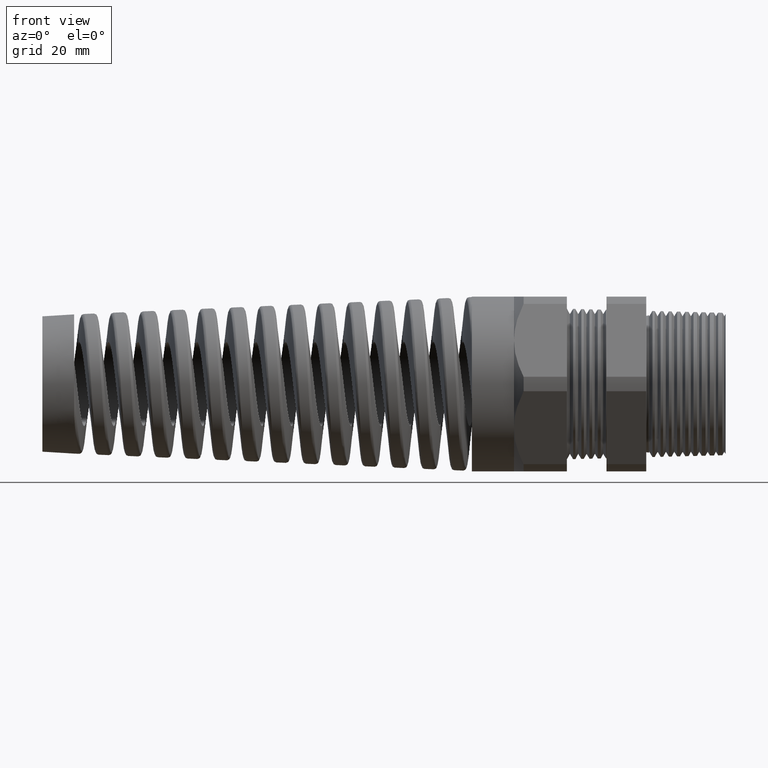
[diagram: clean part render]
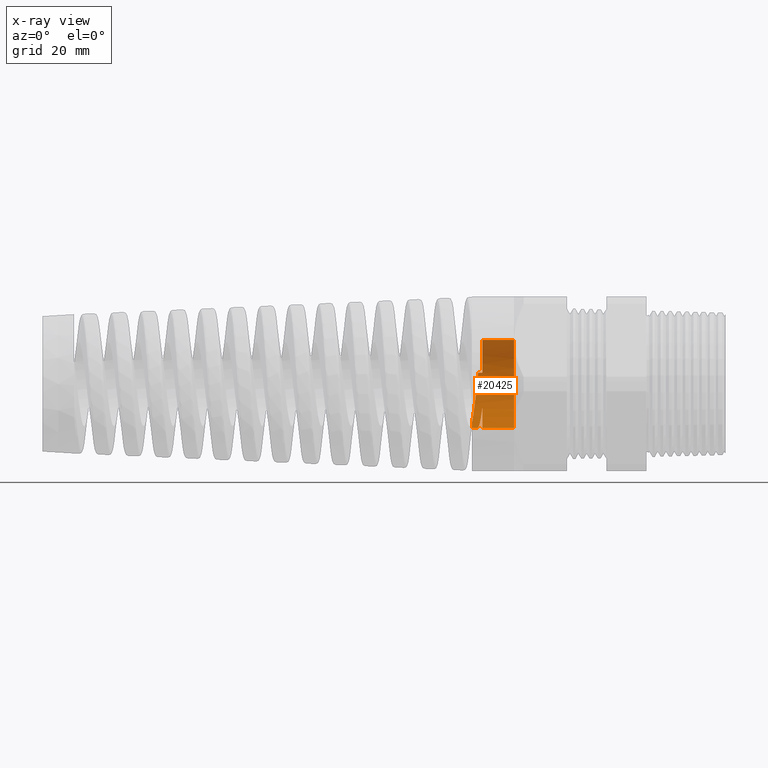
[diagram: x-ray — body ghosted, one internal face saturated and labeled with its STEP entity id]
A machine part, front view, then the same camera in x-ray: the body is ghosted and one INTERNAL B-rep face — a face not visible from any outside direction — is saturated and labeled: STEP entity #20425.
In plain terms, the highlighted cylindrical surface (partial cylindrical patch) has radius 8.321 mm, axis along (1, 0, 0).
Its self-contained STEP definition (entity closure, byte-faithful):
#5223 = CARTESIAN_POINT ( 'NONE',  ( -1.606986927084339500, 0.0000000000000000000, -0.3275967892592687200 ) ) ;
#5224 = DIRECTION ( 'NONE',  ( 1.000000000000000000, 0.0000000000000000000, 0.0000000000000000000 ) ) ;
#5225 = VECTOR ( 'NONE', #5224, 39.37007874015748100 ) ;
#5226 = CARTESIAN_POINT ( 'NONE',  ( -1.606986927084339500, 0.0000000000000000000, -0.3275967892592687200 ) ) ;
#5227 = LINE ( 'NONE', #5226, #5225 ) ;
#5232 = CARTESIAN_POINT ( 'NONE',  ( -1.564009951999491400, -2.522477456024838100E-014, -0.3275967892592686600 ) ) ;
#5263 = DIRECTION ( 'NONE',  ( 0.0000000000000000000, 0.0000000000000000000, 1.000000000000000000 ) ) ;
#5264 = DIRECTION ( 'NONE',  ( -1.000000000000000000, 0.0000000000000000000, 0.0000000000000000000 ) ) ;
#5265 = CARTESIAN_POINT ( 'NONE',  ( -1.606986927084339500, 0.1525758692573220800, -0.2898969824840443300 ) ) ;
#5266 = CARTESIAN_POINT ( 'NONE',  ( -1.605004228757576500, 0.1689550248547366500, -0.2812764584566374000 ) ) ;
#5267 = CARTESIAN_POINT ( 'NONE',  ( -1.603049201785262700, 0.1843852307230015600, -0.2713953827481360200 ) ) ;
#5268 = CARTESIAN_POINT ( 'NONE',  ( -1.599135240126633400, 0.2134158621749077100, -0.2492128344566598400 ) ) ;
#5269 = CARTESIAN_POINT ( 'NONE',  ( -1.597170242409938800, 0.2270567303460308600, -0.2368676581874454800 ) ) ;
#5270 = CARTESIAN_POINT ( 'NONE',  ( -1.593211744778435700, 0.2522511044948289600, -0.2098342835948729700 ) ) ;
#5271 = CARTESIAN_POINT ( 'NONE',  ( -1.591259486015284000, 0.2635452632033897200, -0.1954392749245925100 ) ) ;
#5272 = CARTESIAN_POINT ( 'NONE',  ( -1.587349972702919900, 0.2836196646291896900, -0.1649621222451397000 ) ) ;
#5273 = CARTESIAN_POINT ( 'NONE',  ( -1.585388383493998100, 0.2924168696719718900, -0.1488415606135928000 ) ) ;
#5274 = CARTESIAN_POINT ( 'NONE',  ( -1.579447548986019400, 0.3147507156515511600, -0.09807528402441957600 ) ) ;
#5275 = CARTESIAN_POINT ( 'NONE',  ( -1.575601669585525500, 0.3236741461375424200, -0.06263730614267096200 ) ) ;
#5276 = CARTESIAN_POINT ( 'NONE',  ( -1.567677821366614000, 0.3294914107645833300, 0.01112633052908935900 ) ) ;
#5277 = CARTESIAN_POINT ( 'NONE',  ( -1.563807957625775700, 0.3262449561249687300, 0.04747889690539582700 ) ) ;
#5278 = CARTESIAN_POINT ( 'NONE',  ( -1.559842567108416800, 0.3168342043425460000, 0.08328111005268572200 ) ) ;
#5279 = AXIS2_PLACEMENT_3D ( 'NONE', #5282, #5264, #5263 ) ;
#5280 = CIRCLE ( 'NONE', #5279, 0.3275967892592687200 ) ;
#5281 = B_SPLINE_CURVE_WITH_KNOTS ( 'NONE', 3,
 ( #5278, #5277, #5276, #5275, #5274, #5273, #5272, #5271, #5270, #5269, #5268, #5267, #5266, #5265 ),
 .UNSPECIFIED., .F., .F.,
 ( 4, 2, 2, 2, 2, 2, 4 ),
 ( 4.336808689942017700E-019, 0.002796671433905550500, 0.005593342867811100200, 0.006991678584763875600, 0.008390014301716649400, 0.009788350018669424900, 0.01118668573562220000 ),
 .UNSPECIFIED. ) ;
#5282 = CARTESIAN_POINT ( 'NONE',  ( -1.606986927084339500, 0.0000000000000000000, 0.0000000000000000000 ) ) ;
#5283 = CARTESIAN_POINT ( 'NONE',  ( -1.606986927084339500, 0.1525758692573220800, -0.2898969824840443300 ) ) ;
#5293 = DIRECTION ( 'NONE',  ( 0.0000000000000000000, 0.0000000000000000000, 1.000000000000000000 ) ) ;
#5294 = DIRECTION ( 'NONE',  ( 1.000000000000000000, 0.0000000000000000000, 0.0000000000000000000 ) ) ;
#5295 = AXIS2_PLACEMENT_3D ( 'NONE', #5301, #5294, #5293 ) ;
#5296 = CIRCLE ( 'NONE', #5295, 0.3275967892592687200 ) ;
#5301 = CARTESIAN_POINT ( 'NONE',  ( -1.293779527559055300, 0.0000000000000000000, 0.0000000000000000000 ) ) ;
#5438 = CARTESIAN_POINT ( 'NONE',  ( -1.530000000000000000, 0.0000000000000000000, -0.3275967892592687200 ) ) ;
#5444 = DIRECTION ( 'NONE',  ( 1.000000000000000000, 0.0000000000000000000, 0.0000000000000000000 ) ) ;
#5445 = VECTOR ( 'NONE', #5444, 39.37007874015748100 ) ;
#5446 = CARTESIAN_POINT ( 'NONE',  ( -1.606986927084339500, 4.011903593773134600E-017, 0.3275967892592687200 ) ) ;
#5447 = LINE ( 'NONE', #5446, #5445 ) ;
#5448 = CARTESIAN_POINT ( 'NONE',  ( -1.293779527559055300, 4.011903593773134600E-017, 0.3275967892592687200 ) ) ;
#5458 = CARTESIAN_POINT ( 'NONE',  ( -1.530000000000000000, 4.011903593773134600E-017, 0.3275967892592687200 ) ) ;
#5479 = CARTESIAN_POINT ( 'NONE',  ( -1.530000000000000000, 0.3168342043425460000, 0.08328111005268570800 ) ) ;
#5501 = DIRECTION ( 'NONE',  ( 0.0000000000000000000, 0.0000000000000000000, -1.000000000000000000 ) ) ;
#5502 = DIRECTION ( 'NONE',  ( -1.000000000000000000, 0.0000000000000000000, 0.0000000000000000000 ) ) ;
#5503 = CARTESIAN_POINT ( 'NONE',  ( -1.530000000000000000, 0.0000000000000000000, 0.0000000000000000000 ) ) ;
#5504 = AXIS2_PLACEMENT_3D ( 'NONE', #5503, #5502, #5501 ) ;
#5505 = CIRCLE ( 'NONE', #5504, 0.3275967892592687200 ) ;
#5510 = CARTESIAN_POINT ( 'NONE',  ( -1.559842567108416800, 0.3168342043425460000, 0.08328111005268572200 ) ) ;
#5516 = DIRECTION ( 'NONE',  ( 1.000000000000000000, 0.0000000000000000000, 0.0000000000000000000 ) ) ;
#5517 = VECTOR ( 'NONE', #5516, 39.37007874015748100 ) ;
#5518 = CARTESIAN_POINT ( 'NONE',  ( -1.606986927084339500, 0.3168342043425460000, 0.08328111005268570800 ) ) ;
#5524 = LINE ( 'NONE', #5518, #5517 ) ;
#6482 = DIRECTION ( 'NONE',  ( 1.000000000000000000, 0.0000000000000000000, 0.0000000000000000000 ) ) ;
#6483 = AXIS2_PLACEMENT_3D ( 'NONE', #6490, #6482, #6625 ) ;
#6484 = CYLINDRICAL_SURFACE ( 'NONE', #6483, 0.3275967892592687200 ) ;
#6490 = CARTESIAN_POINT ( 'NONE',  ( -1.606986927084339500, 0.0000000000000000000, 0.0000000000000000000 ) ) ;
#6492 = FACE_OUTER_BOUND ( 'NONE', #20328, .T. ) ;
#6590 = DIRECTION ( 'NONE',  ( 1.000000000000000000, 0.0000000000000000000, 0.0000000000000000000 ) ) ;
#6591 = VECTOR ( 'NONE', #6590, 39.37007874015748100 ) ;
#6592 = CARTESIAN_POINT ( 'NONE',  ( -1.606986927084339500, 0.0000000000000000000, -0.3275967892592687200 ) ) ;
#6606 = LINE ( 'NONE', #6592, #6591 ) ;
#6609 = CARTESIAN_POINT ( 'NONE',  ( -1.293779527559055300, 0.0000000000000000000, -0.3275967892592687200 ) ) ;
#6613 = CARTESIAN_POINT ( 'NONE',  ( -1.530000000000000200, 0.2708854878157694900, -0.1842300432171773100 ) ) ;
#6625 = DIRECTION ( 'NONE',  ( 0.0000000000000000000, 0.0000000000000000000, -1.000000000000000000 ) ) ;
#6651 = DIRECTION ( 'NONE',  ( 0.0000000000000000000, 0.0000000000000000000, -1.000000000000000000 ) ) ;
#6652 = DIRECTION ( 'NONE',  ( -1.000000000000000000, 0.0000000000000000000, 0.0000000000000000000 ) ) ;
#6654 = CARTESIAN_POINT ( 'NONE',  ( -1.530000000000000000, 0.0000000000000000000, 0.0000000000000000000 ) ) ;
#6655 = AXIS2_PLACEMENT_3D ( 'NONE', #6654, #6652, #6651 ) ;
#6657 = CIRCLE ( 'NONE', #6655, 0.3275967892592687200 ) ;
#17114 = CARTESIAN_POINT ( 'NONE',  ( -1.530000000000000200, 0.2708854878157694900, -0.1842300432171773100 ) ) ;
#17115 = CARTESIAN_POINT ( 'NONE',  ( -1.531410086634068300, 0.2634491727200121700, -0.1951641439050168800 ) ) ;
#17116 = CARTESIAN_POINT ( 'NONE',  ( -1.532820709330572800, 0.2553525623190978100, -0.2056507293560127500 ) ) ;
#17117 = CARTESIAN_POINT ( 'NONE',  ( -1.535662761244105200, 0.2378099785061000600, -0.2257068179974121300 ) ) ;
#17118 = CARTESIAN_POINT ( 'NONE',  ( -1.537096399322525700, 0.2283361318917980200, -0.2352842027458407800 ) ) ;
#17119 = CARTESIAN_POINT ( 'NONE',  ( -1.541344154380353200, 0.1986429983028501800, -0.2618514292161232500 ) ) ;
#17120 = CARTESIAN_POINT ( 'NONE',  ( -1.544145354140401800, 0.1769458301232221800, -0.2769924177356487000 ) ) ;
#17121 = CARTESIAN_POINT ( 'NONE',  ( -1.548422821282385600, 0.1415009501490036800, -0.2957632159801562600 ) ) ;
#17122 = CARTESIAN_POINT ( 'NONE',  ( -1.549848851664250800, 0.1292933884391238900, -0.3012947696706161400 ) ) ;
#17123 = CARTESIAN_POINT ( 'NONE',  ( -1.552674928881964600, 0.1045313684354499500, -0.3107547449966806500 ) ) ;
#17124 = CARTESIAN_POINT ( 'NONE',  ( -1.554082422364595900, 0.09191499081303086700, -0.3147167414568071700 ) ) ;
#17125 = CARTESIAN_POINT ( 'NONE',  ( -1.556907033668397400, 0.06621492314626836700, -0.3211083568549473200 ) ) ;
#17126 = CARTESIAN_POINT ( 'NONE',  ( -1.558326384258558600, 0.05310937390643163300, -0.3235408234081809700 ) ) ;
#17127 = CARTESIAN_POINT ( 'NONE',  ( -1.561184453596124800, 0.02650398463903866400, -0.3267978102843263100 ) ) ;
#17128 = CARTESIAN_POINT ( 'NONE',  ( -1.562598808948233700, 0.01323511598854614300, -0.3275967892592697200 ) ) ;
#17129 = CARTESIAN_POINT ( 'NONE',  ( -1.564009951999491400, -2.522477456024838100E-014, -0.3275967892592686600 ) ) ;
#17134 = B_SPLINE_CURVE_WITH_KNOTS ( 'NONE', 3,
 ( #17129, #17128, #17127, #17126, #17125, #17124, #17123, #17122, #17121, #17120, #17119, #17118, #17117, #17116, #17115, #17114 ),
 .UNSPECIFIED., .F., .F.,
 ( 4, 2, 2, 2, 2, 2, 2, 4 ),
 ( 0.01024741821517863800, 0.01126073674905674200, 0.01227405528293484800, 0.01328737381681295200, 0.01430069235069105600, 0.01632732941844726100, 0.01734064795232536500, 0.01835396648620346600 ),
 .UNSPECIFIED. ) ;
#18823 = ORIENTED_EDGE ( 'NONE', *, *, #19156, .T. ) ;
#18824 = ORIENTED_EDGE ( 'NONE', *, *, #19087, .T. ) ;
#18827 = VERTEX_POINT ( 'NONE', #5232 ) ;
#18858 = ORIENTED_EDGE ( 'NONE', *, *, #20520, .T. ) ;
#18864 = EDGE_CURVE ( 'NONE', #18865, #18827, #5227, .T. ) ;
#18865 = VERTEX_POINT ( 'NONE', #5223 ) ;
#18867 = ORIENTED_EDGE ( 'NONE', *, *, #18871, .T. ) ;
#18871 = EDGE_CURVE ( 'NONE', #20345, #18873, #5281, .T. ) ;
#18873 = VERTEX_POINT ( 'NONE', #5283 ) ;
#18874 = ORIENTED_EDGE ( 'NONE', *, *, #18864, .T. ) ;
#18875 = EDGE_CURVE ( 'NONE', #18873, #18865, #5280, .T. ) ;
#18876 = ORIENTED_EDGE ( 'NONE', *, *, #18875, .T. ) ;
#19087 = EDGE_CURVE ( 'NONE', #20511, #20305, #5296, .T. ) ;
#19156 = EDGE_CURVE ( 'NONE', #18827, #20474, #17134, .T. ) ;
#20301 = VERTEX_POINT ( 'NONE', #5458 ) ;
#20305 = VERTEX_POINT ( 'NONE', #5448 ) ;
#20306 = EDGE_CURVE ( 'NONE', #20301, #20305, #5447, .T. ) ;
#20310 = VERTEX_POINT ( 'NONE', #5438 ) ;
#20314 = ORIENTED_EDGE ( 'NONE', *, *, #20343, .F. ) ;
#20327 = VERTEX_POINT ( 'NONE', #5479 ) ;
#20328 = EDGE_LOOP ( 'NONE', ( #20354, #20351, #20314, #18867, #18876, #18874, #18823, #20597, #18858, #18824 ) ) ;
#20343 = EDGE_CURVE ( 'NONE', #20345, #20327, #5524, .T. ) ;
#20345 = VERTEX_POINT ( 'NONE', #5510 ) ;
#20351 = ORIENTED_EDGE ( 'NONE', *, *, #20355, .T. ) ;
#20354 = ORIENTED_EDGE ( 'NONE', *, *, #20306, .F. ) ;
#20355 = EDGE_CURVE ( 'NONE', #20301, #20327, #5505, .T. ) ;
#20425 = ADVANCED_FACE ( 'NONE', ( #6492 ), #6484, .F. ) ;
#20474 = VERTEX_POINT ( 'NONE', #6613 ) ;
#20511 = VERTEX_POINT ( 'NONE', #6609 ) ;
#20520 = EDGE_CURVE ( 'NONE', #20310, #20511, #6606, .T. ) ;
#20597 = ORIENTED_EDGE ( 'NONE', *, *, #20606, .T. ) ;
#20606 = EDGE_CURVE ( 'NONE', #20474, #20310, #6657, .T. ) ;